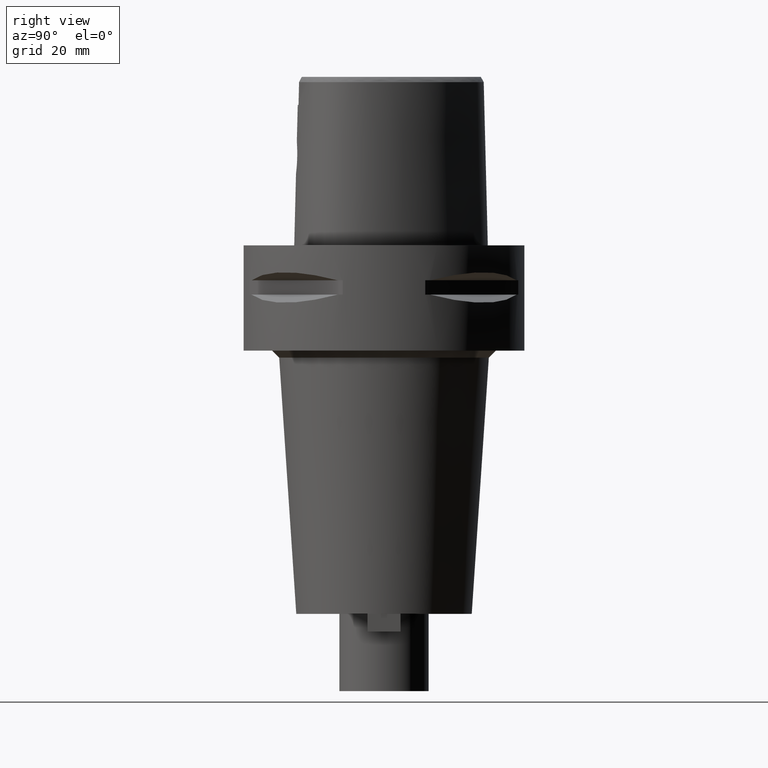
[diagram: clean part render]
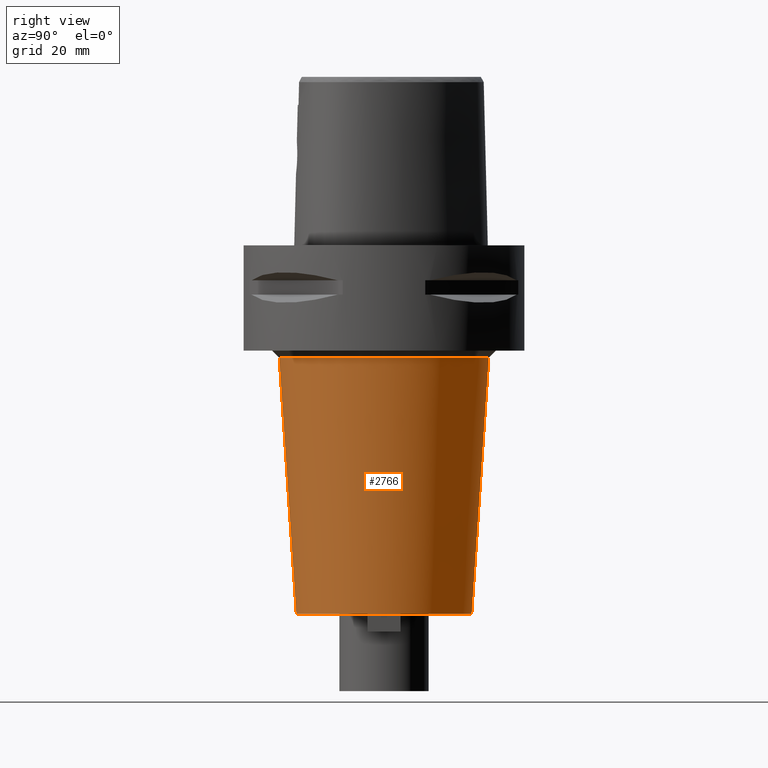
[diagram: same view with one face highlighted and labeled with its STEP entity id]
A machine part, right view. The second image highlights one B-rep face of the part: STEP entity #2766.
In plain terms, the highlighted conical surface has half-angle 3.814 deg.
Its self-contained STEP definition (entity closure, byte-faithful):
#556=DIRECTION('',(0.E0,-6.651770731179E-2,-9.977852447366E-1));
#557=VECTOR('',#556,7.316203600433E1);
#558=CARTESIAN_POINT('',(0.E0,2.986657089727E1,-3.2E1));
#559=LINE('',#558,#557);
#563=CARTESIAN_POINT('',(0.E0,0.E0,-3.2E1));
#564=DIRECTION('',(0.E0,0.E0,1.E0));
#565=DIRECTION('',(0.E0,-1.E0,0.E0));
#566=AXIS2_PLACEMENT_3D('',#563,#564,#565);
#571=DIRECTION('',(0.E0,6.651770731179E-2,-9.977852447366E-1));
#572=VECTOR('',#571,7.316203600433E1);
#573=CARTESIAN_POINT('',(0.E0,-2.986657089727E1,-3.2E1));
#574=LINE('',#573,#572);
#578=CARTESIAN_POINT('',(0.E0,0.E0,-1.05E2));
#579=DIRECTION('',(0.E0,0.E0,1.E0));
#580=DIRECTION('',(0.E0,-1.E0,0.E0));
#581=AXIS2_PLACEMENT_3D('',#578,#579,#580);
#1742=CARTESIAN_POINT('',(0.E0,2.986657089727E1,-3.2E1));
#1743=VERTEX_POINT('',#1742);
#1744=CARTESIAN_POINT('',(0.E0,-2.986657089727E1,-3.2E1));
#1745=VERTEX_POINT('',#1744);
#1746=CARTESIAN_POINT('',(0.E0,2.5E1,-1.05E2));
#1747=VERTEX_POINT('',#1746);
#1748=CARTESIAN_POINT('',(0.E0,-2.5E1,-1.05E2));
#1749=VERTEX_POINT('',#1748);
#2752=CARTESIAN_POINT('',(0.E0,0.E0,-6.85E1));
#2753=DIRECTION('',(0.E0,0.E0,1.E0));
#2754=DIRECTION('',(0.E0,1.E0,0.E0));
#2755=AXIS2_PLACEMENT_3D('',#2752,#2753,#2754);
#2756=CONICAL_SURFACE('',#2755,2.743328544863E1,3.814E0);
#2758=ORIENTED_EDGE('',*,*,#2757,.T.);
#2760=ORIENTED_EDGE('',*,*,#2759,.F.);
#2762=ORIENTED_EDGE('',*,*,#2761,.F.);
#2763=ORIENTED_EDGE('',*,*,#2745,.T.);
#2764=EDGE_LOOP('',(#2758,#2760,#2762,#2763));
#2765=FACE_OUTER_BOUND('',#2764,.F.);
#567=CIRCLE('',#566,2.986657089726E1);
#582=CIRCLE('',#581,2.5E1);
#2745=EDGE_CURVE('',#1745,#1743,#567,.T.);
#2757=EDGE_CURVE('',#1743,#1747,#559,.T.);
#2759=EDGE_CURVE('',#1749,#1747,#582,.T.);
#2761=EDGE_CURVE('',#1745,#1749,#574,.T.);
#2766=ADVANCED_FACE('',(#2765),#2756,.T.);